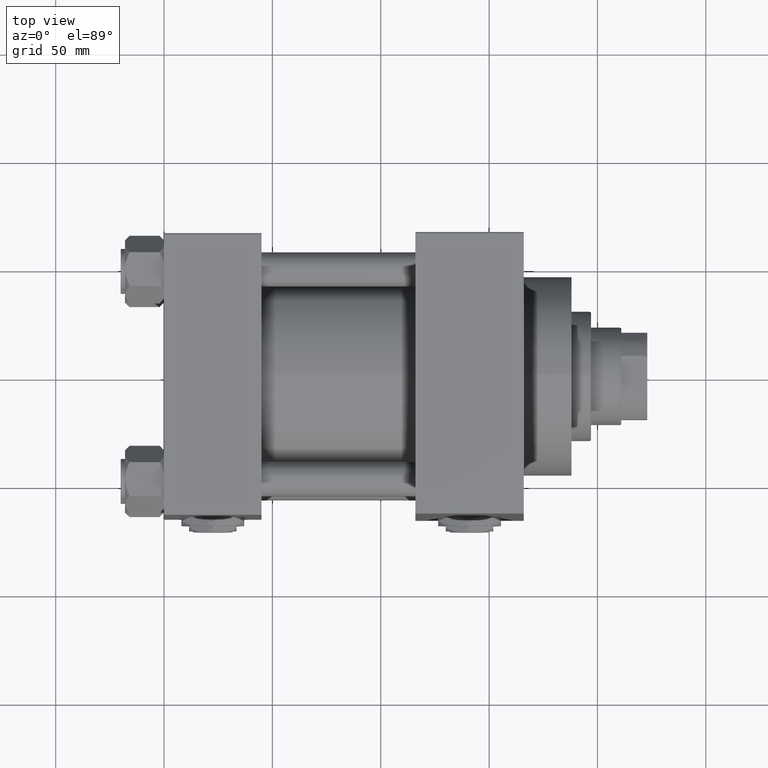
[diagram: clean part render]
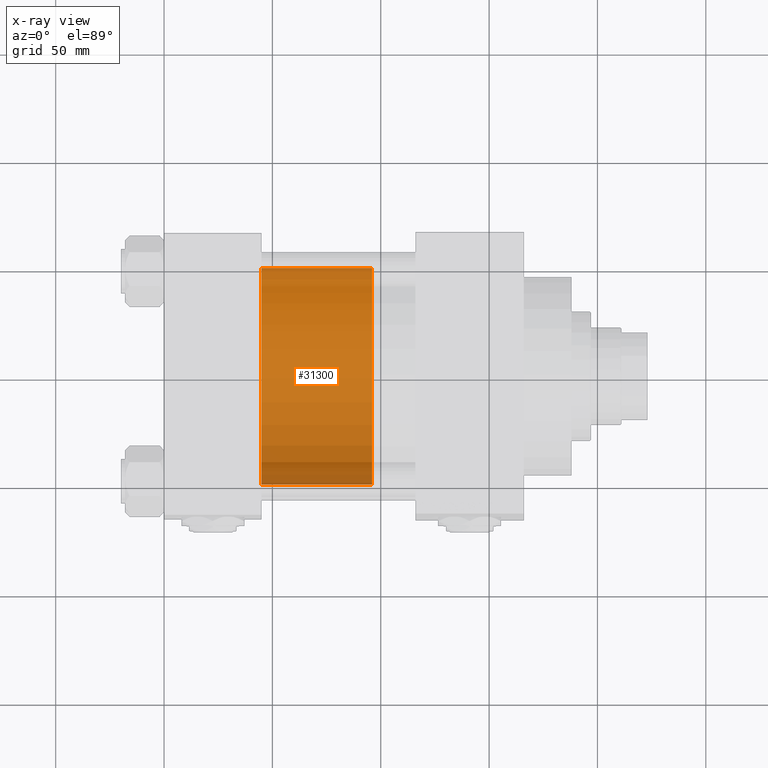
[diagram: x-ray — body ghosted, one internal face saturated and labeled with its STEP entity id]
A machine part, top view, then the same camera in x-ray: the body is ghosted and one INTERNAL B-rep face — a face not visible from any outside direction — is saturated and labeled: STEP entity #31300.
In plain terms, the highlighted cylindrical surface (partial cylindrical patch) has radius 50 mm, axis along (-1, 0, 0).
Its self-contained STEP definition (entity closure, byte-faithful):
#1410 = EDGE_CURVE ( 'NONE', #15494, #9211, #14069, .T. ) ;
#3214 = CARTESIAN_POINT ( 'NONE',  ( 0.000000000000000000, 0.000000000000000000, 0.000000000000000000 ) ) ;
#4179 = CARTESIAN_POINT ( 'NONE',  ( 0.000000000000000000, 0.000000000000000000, 51.00000000000000000 ) ) ;
#5063 = VERTEX_POINT ( 'NONE', #6864 ) ;
#6625 = EDGE_CURVE ( 'NONE', #12782, #9211, #15606, .T. ) ;
#6864 = CARTESIAN_POINT ( 'NONE',  ( 50.00000000000000000, 6.123233995736766085E-15, 51.00000000000000000 ) ) ;
#7402 = ORIENTED_EDGE ( 'NONE', *, *, #6625, .T. ) ;
#9211 = VERTEX_POINT ( 'NONE', #21309 ) ;
#9360 = CARTESIAN_POINT ( 'NONE',  ( 50.00000000000000000, 6.123233995736766085E-15, 51.00000000000000000 ) ) ;
#9388 = ORIENTED_EDGE ( 'NONE', *, *, #24395, .F. ) ;
#12782 = VERTEX_POINT ( 'NONE', #16589 ) ;
#13811 = DIRECTION ( 'NONE',  ( 1.000000000000000000, 0.000000000000000000, 0.000000000000000000 ) ) ;
#14069 = LINE ( 'NONE', #45530, #30840 ) ;
#14312 = DIRECTION ( 'NONE',  ( -0.000000000000000000, -0.000000000000000000, -1.000000000000000000 ) ) ;
#15494 = VERTEX_POINT ( 'NONE', #46873 ) ;
#15606 = CIRCLE ( 'NONE', #32518, 50.00000000000000000 ) ;
#16589 = CARTESIAN_POINT ( 'NONE',  ( 50.00000000000000000, 6.123233995736766085E-15, 0.000000000000000000 ) ) ;
#19417 = ORIENTED_EDGE ( 'NONE', *, *, #34274, .T. ) ;
#20270 = DIRECTION ( 'NONE',  ( 0.000000000000000000, 0.000000000000000000, 1.000000000000000000 ) ) ;
#21309 = CARTESIAN_POINT ( 'NONE',  ( -50.00000000000000000, 0.000000000000000000, 0.000000000000000000 ) ) ;
#23039 = ORIENTED_EDGE ( 'NONE', *, *, #1410, .F. ) ;
#24391 = AXIS2_PLACEMENT_3D ( 'NONE', #32112, #20270, #43456 ) ;
#24395 = EDGE_CURVE ( 'NONE', #5063, #15494, #46109, .T. ) ;
#25462 = DIRECTION ( 'NONE',  ( -0.000000000000000000, -0.000000000000000000, -1.000000000000000000 ) ) ;
#30840 = VECTOR ( 'NONE', #14312, 1000.000000000000000 ) ;
#30872 = DIRECTION ( 'NONE',  ( -1.000000000000000000, 0.000000000000000000, 0.000000000000000000 ) ) ;
#31300 = ADVANCED_FACE ( 'NONE', ( #42960 ), #46480, .T. ) ;
#32112 = CARTESIAN_POINT ( 'NONE',  ( 0.000000000000000000, 0.000000000000000000, 51.00000000000000000 ) ) ;
#32518 = AXIS2_PLACEMENT_3D ( 'NONE', #3214, #45018, #13811 ) ;
#32701 = AXIS2_PLACEMENT_3D ( 'NONE', #4179, #46223, #30872 ) ;
#33012 = LINE ( 'NONE', #9360, #35938 ) ;
#34274 = EDGE_CURVE ( 'NONE', #5063, #12782, #33012, .T. ) ;
#35938 = VECTOR ( 'NONE', #25462, 1000.000000000000000 ) ;
#38924 = EDGE_LOOP ( 'NONE', ( #9388, #19417, #7402, #23039 ) ) ;
#42960 = FACE_OUTER_BOUND ( 'NONE', #38924, .T. ) ;
#43456 = DIRECTION ( 'NONE',  ( 1.000000000000000000, 0.000000000000000000, 0.000000000000000000 ) ) ;
#45018 = DIRECTION ( 'NONE',  ( 0.000000000000000000, 0.000000000000000000, 1.000000000000000000 ) ) ;
#45530 = CARTESIAN_POINT ( 'NONE',  ( -50.00000000000000000, 0.000000000000000000, 51.00000000000000000 ) ) ;
#46109 = CIRCLE ( 'NONE', #24391, 50.00000000000000000 ) ;
#46223 = DIRECTION ( 'NONE',  ( -0.000000000000000000, -0.000000000000000000, -1.000000000000000000 ) ) ;
#46480 = CYLINDRICAL_SURFACE ( 'NONE', #32701, 50.00000000000000000 ) ;
#46873 = CARTESIAN_POINT ( 'NONE',  ( -50.00000000000000000, 0.000000000000000000, 51.00000000000000000 ) ) ;